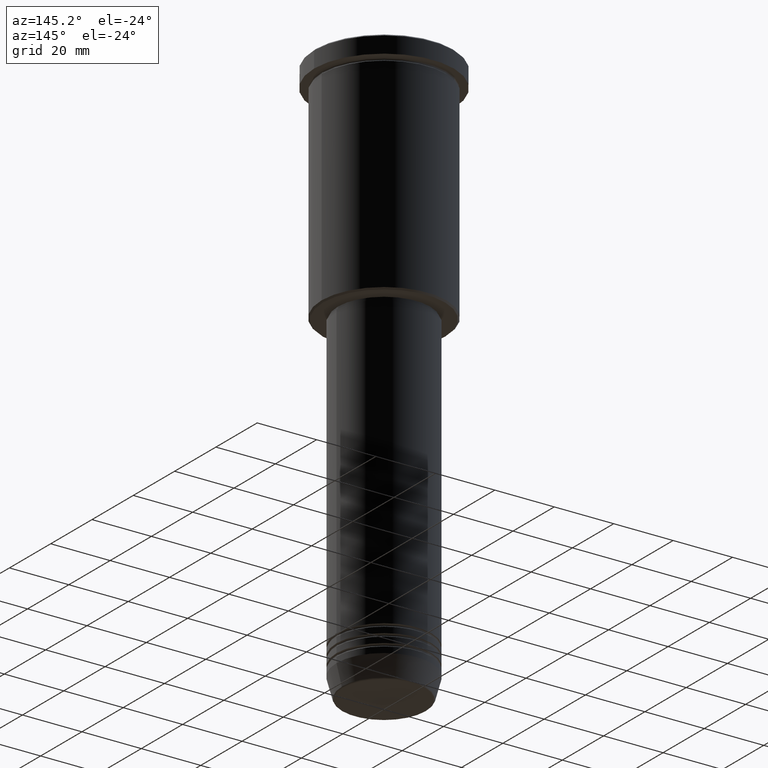
[diagram: clean part render]
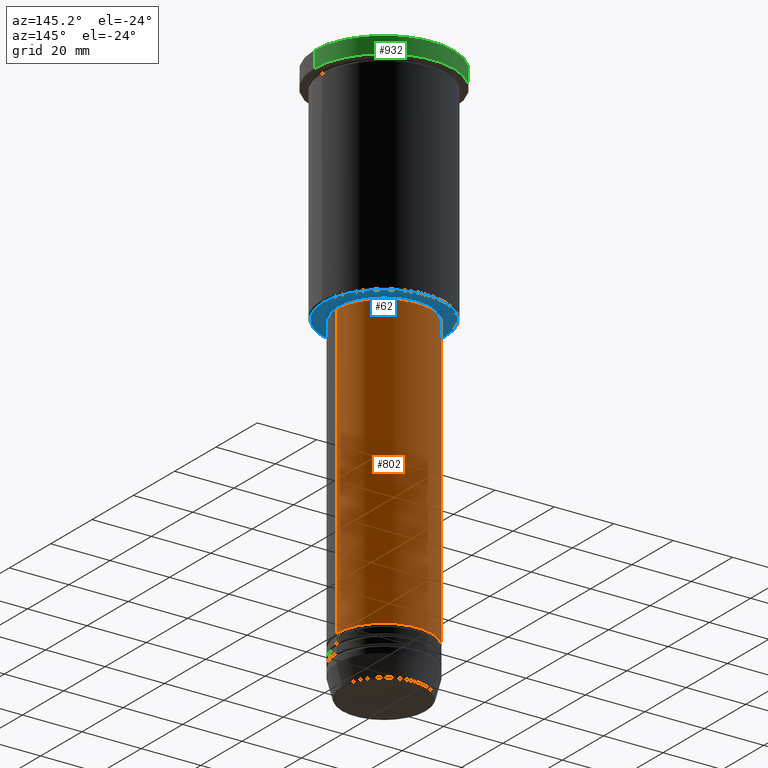
[diagram: same view with three faces highlighted in distinct colors, each labeled with its STEP entity id]
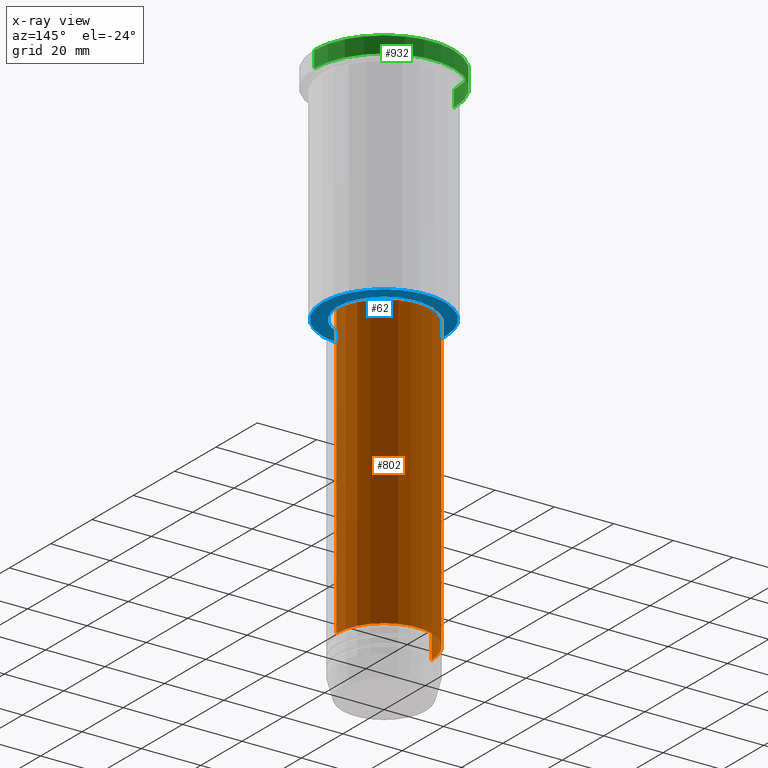
[diagram: x-ray of the same camera — body ghosted, the three highlighted faces saturated]
A machine part, auxiliary view with three faces highlighted in distinct colors.
The next image is the same camera in x-ray (body ghosted, the three faces saturated) — at least one of them is partly hidden behind the body in this view.
Their STEP definitions:

[orange] entity #802 — the highlighted cylindrical surface (partial cylindrical patch) has radius 16 mm, axis along (-0, -0, 1).
#4 = FACE_OUTER_BOUND ( 'NONE', #875, .T. ) ;
#88 = VECTOR ( 'NONE', #324, 1000.000000000000000 ) ;
#111 = CARTESIAN_POINT ( 'NONE',  ( 0.000000000000000000, 0.000000000000000000, -77.00000000000001421 ) ) ;
#145 = CARTESIAN_POINT ( 'NONE',  ( 0.000000000000000000, 0.000000000000000000, -175.0000000000000000 ) ) ;
#158 = AXIS2_PLACEMENT_3D ( 'NONE', #145, #969, #1048 ) ;
#256 = CIRCLE ( 'NONE', #158, 16.00000000000000000 ) ;
#300 = LINE ( 'NONE', #1031, #313 ) ;
#303 = VERTEX_POINT ( 'NONE', #661 ) ;
#313 = VECTOR ( 'NONE', #845, 1000.000000000000000 ) ;
#324 = DIRECTION ( 'NONE',  ( -0.000000000000000000, -0.000000000000000000, 1.000000000000000000 ) ) ;
#346 = VERTEX_POINT ( 'NONE', #852 ) ;
#384 = DIRECTION ( 'NONE',  ( 1.000000000000000000, 0.000000000000000000, 0.000000000000000000 ) ) ;
#464 = VERTEX_POINT ( 'NONE', #806 ) ;
#475 = CARTESIAN_POINT ( 'NONE',  ( 0.000000000000000000, 0.000000000000000000, 0.000000000000000000 ) ) ;
#543 = ORIENTED_EDGE ( 'NONE', *, *, #746, .T. ) ;
#555 = DIRECTION ( 'NONE',  ( -0.000000000000000000, -0.000000000000000000, 1.000000000000000000 ) ) ;
#591 = AXIS2_PLACEMENT_3D ( 'NONE', #111, #555, #768 ) ;
#603 = ORIENTED_EDGE ( 'NONE', *, *, #861, .T. ) ;
#661 = CARTESIAN_POINT ( 'NONE',  ( 16.00000000000000000, 0.000000000000000000, -175.0000000000000000 ) ) ;
#743 = ORIENTED_EDGE ( 'NONE', *, *, #937, .F. ) ;
#746 = EDGE_CURVE ( 'NONE', #346, #464, #300, .T. ) ;
#768 = DIRECTION ( 'NONE',  ( 1.000000000000000000, 0.000000000000000000, 0.000000000000000000 ) ) ;
#788 = LINE ( 'NONE', #1141, #88 ) ;
#802 = ADVANCED_FACE ( 'NONE', ( #4 ), #1026, .T. ) ;
#805 = CARTESIAN_POINT ( 'NONE',  ( 16.00000000000000000, 0.000000000000000000, -77.00000000000001421 ) ) ;
#806 = CARTESIAN_POINT ( 'NONE',  ( -16.00000000000000000, 1.959434878635765131E-15, -77.00000000000001421 ) ) ;
#810 = EDGE_CURVE ( 'NONE', #914, #464, #1073, .T. ) ;
#845 = DIRECTION ( 'NONE',  ( -0.000000000000000000, -0.000000000000000000, 1.000000000000000000 ) ) ;
#852 = CARTESIAN_POINT ( 'NONE',  ( -16.00000000000000000, 1.959434878635765131E-15, -175.0000000000000000 ) ) ;
#861 = EDGE_CURVE ( 'NONE', #303, #346, #256, .T. ) ;
#875 = EDGE_LOOP ( 'NONE', ( #603, #543, #1097, #743 ) ) ;
#914 = VERTEX_POINT ( 'NONE', #805 ) ;
#923 = AXIS2_PLACEMENT_3D ( 'NONE', #475, #1043, #384 ) ;
#937 = EDGE_CURVE ( 'NONE', #303, #914, #788, .T. ) ;
#969 = DIRECTION ( 'NONE',  ( -0.000000000000000000, -0.000000000000000000, 1.000000000000000000 ) ) ;
#1026 = CYLINDRICAL_SURFACE ( 'NONE', #923, 16.00000000000000000 ) ;
#1031 = CARTESIAN_POINT ( 'NONE',  ( -16.00000000000000000, 1.959434878635765131E-15, 0.000000000000000000 ) ) ;
#1043 = DIRECTION ( 'NONE',  ( -0.000000000000000000, -0.000000000000000000, 1.000000000000000000 ) ) ;
#1048 = DIRECTION ( 'NONE',  ( 1.000000000000000000, 0.000000000000000000, 0.000000000000000000 ) ) ;
#1073 = CIRCLE ( 'NONE', #591, 16.00000000000000000 ) ;
#1097 = ORIENTED_EDGE ( 'NONE', *, *, #810, .F. ) ;
#1141 = CARTESIAN_POINT ( 'NONE',  ( 16.00000000000000000, 0.000000000000000000, 0.000000000000000000 ) ) ;

[blue] entity #62 — the highlighted planar face has unit normal (0, 0, -1).
#62 = ADVANCED_FACE ( 'NONE', ( #1153, #1062 ), #502, .T. ) ;
#166 = DIRECTION ( 'NONE',  ( -0.000000000000000000, -0.000000000000000000, 1.000000000000000000 ) ) ;
#182 = AXIS2_PLACEMENT_3D ( 'NONE', #707, #819, #614 ) ;
#222 = DIRECTION ( 'NONE',  ( 0.000000000000000000, 0.000000000000000000, -1.000000000000000000 ) ) ;
#223 = DIRECTION ( 'NONE',  ( 1.000000000000000000, 0.000000000000000000, 0.000000000000000000 ) ) ;
#280 = CIRCLE ( 'NONE', #965, 15.50000000000000000 ) ;
#342 = CARTESIAN_POINT ( 'NONE',  ( -20.49999999999998934, 2.541142108230757480E-15, -76.00000000000001421 ) ) ;
#402 = CARTESIAN_POINT ( 'NONE',  ( 20.49999999999998934, 0.000000000000000000, -76.00000000000001421 ) ) ;
#409 = DIRECTION ( 'NONE',  ( -1.000000000000000000, 0.000000000000000000, -0.000000000000000000 ) ) ;
#430 = EDGE_CURVE ( 'NONE', #964, #910, #549, .T. ) ;
#454 = CIRCLE ( 'NONE', #182, 20.49999999999998934 ) ;
#495 = ORIENTED_EDGE ( 'NONE', *, *, #430, .T. ) ;
#502 = PLANE ( 'NONE',  #1037 ) ;
#549 = CIRCLE ( 'NONE', #904, 15.50000000000000000 ) ;
#550 = EDGE_LOOP ( 'NONE', ( #949, #1113 ) ) ;
#592 = CARTESIAN_POINT ( 'NONE',  ( 0.000000000000000000, 0.000000000000000000, -76.00000000000001421 ) ) ;
#600 = CARTESIAN_POINT ( 'NONE',  ( 15.50000000000000000, 0.000000000000000000, -76.00000000000001421 ) ) ;
#614 = DIRECTION ( 'NONE',  ( -1.000000000000000000, 0.000000000000000000, 0.000000000000000000 ) ) ;
#633 = VERTEX_POINT ( 'NONE', #342 ) ;
#646 = ORIENTED_EDGE ( 'NONE', *, *, #1099, .T. ) ;
#691 = CARTESIAN_POINT ( 'NONE',  ( 0.000000000000000000, 0.000000000000000000, -76.00000000000001421 ) ) ;
#706 = CARTESIAN_POINT ( 'NONE',  ( 0.000000000000000000, 21.00000000000000000, -76.00000000000001421 ) ) ;
#707 = CARTESIAN_POINT ( 'NONE',  ( 0.000000000000000000, 0.000000000000000000, -76.00000000000001421 ) ) ;
#719 = DIRECTION ( 'NONE',  ( 1.000000000000000000, 0.000000000000000000, 0.000000000000000000 ) ) ;
#784 = CARTESIAN_POINT ( 'NONE',  ( -15.50000000000000000, 1.898202538678397557E-15, -76.00000000000001421 ) ) ;
#811 = CARTESIAN_POINT ( 'NONE',  ( 0.000000000000000000, 0.000000000000000000, -76.00000000000001421 ) ) ;
#819 = DIRECTION ( 'NONE',  ( 0.000000000000000000, 0.000000000000000000, -1.000000000000000000 ) ) ;
#879 = DIRECTION ( 'NONE',  ( 0.000000000000000000, 0.000000000000000000, -1.000000000000000000 ) ) ;
#904 = AXIS2_PLACEMENT_3D ( 'NONE', #592, #1061, #223 ) ;
#910 = VERTEX_POINT ( 'NONE', #784 ) ;
#913 = DIRECTION ( 'NONE',  ( -1.000000000000000000, 0.000000000000000000, 0.000000000000000000 ) ) ;
#935 = EDGE_LOOP ( 'NONE', ( #495, #646 ) ) ;
#943 = CIRCLE ( 'NONE', #1094, 20.49999999999998934 ) ;
#949 = ORIENTED_EDGE ( 'NONE', *, *, #985, .T. ) ;
#964 = VERTEX_POINT ( 'NONE', #600 ) ;
#965 = AXIS2_PLACEMENT_3D ( 'NONE', #811, #166, #719 ) ;
#977 = VERTEX_POINT ( 'NONE', #402 ) ;
#985 = EDGE_CURVE ( 'NONE', #977, #633, #943, .T. ) ;
#1008 = EDGE_CURVE ( 'NONE', #633, #977, #454, .T. ) ;
#1037 = AXIS2_PLACEMENT_3D ( 'NONE', #706, #879, #409 ) ;
#1061 = DIRECTION ( 'NONE',  ( -0.000000000000000000, -0.000000000000000000, 1.000000000000000000 ) ) ;
#1062 = FACE_BOUND ( 'NONE', #935, .T. ) ;
#1094 = AXIS2_PLACEMENT_3D ( 'NONE', #691, #222, #913 ) ;
#1099 = EDGE_CURVE ( 'NONE', #910, #964, #280, .T. ) ;
#1113 = ORIENTED_EDGE ( 'NONE', *, *, #1008, .T. ) ;
#1153 = FACE_OUTER_BOUND ( 'NONE', #550, .T. ) ;

[green] entity #932 — the highlighted cylindrical surface (partial cylindrical patch) has radius 23.5 mm, axis along (-0, -0, 1).
#51 = ORIENTED_EDGE ( 'NONE', *, *, #230, .F. ) ;
#53 = FACE_OUTER_BOUND ( 'NONE', #317, .T. ) ;
#60 = CARTESIAN_POINT ( 'NONE',  ( -23.50000000000000000, 2.877919977996280320E-15, -5.999999999999994671 ) ) ;
#78 = CARTESIAN_POINT ( 'NONE',  ( 0.000000000000000000, 0.000000000000000000, -0.5000000000000281997 ) ) ;
#87 = CARTESIAN_POINT ( 'NONE',  ( -23.50000000000000000, 2.877919977996280320E-15, 0.000000000000000000 ) ) ;
#96 = VERTEX_POINT ( 'NONE', #521 ) ;
#102 = AXIS2_PLACEMENT_3D ( 'NONE', #78, #1182, #826 ) ;
#108 = CIRCLE ( 'NONE', #1164, 23.50000000000000000 ) ;
#142 = EDGE_CURVE ( 'NONE', #96, #588, #623, .T. ) ;
#164 = ORIENTED_EDGE ( 'NONE', *, *, #721, .T. ) ;
#168 = CARTESIAN_POINT ( 'NONE',  ( 23.50000000000000000, 0.000000000000000000, -0.5000000000000281997 ) ) ;
#226 = DIRECTION ( 'NONE',  ( 1.000000000000000000, 0.000000000000000000, 0.000000000000000000 ) ) ;
#230 = EDGE_CURVE ( 'NONE', #344, #588, #438, .T. ) ;
#296 = CARTESIAN_POINT ( 'NONE',  ( 23.50000000000000000, 0.000000000000000000, -5.999999999999994671 ) ) ;
#297 = AXIS2_PLACEMENT_3D ( 'NONE', #1151, #507, #226 ) ;
#317 = EDGE_LOOP ( 'NONE', ( #636, #164, #823, #51 ) ) ;
#335 = DIRECTION ( 'NONE',  ( -0.000000000000000000, -0.000000000000000000, 1.000000000000000000 ) ) ;
#344 = VERTEX_POINT ( 'NONE', #296 ) ;
#438 = LINE ( 'NONE', #541, #980 ) ;
#507 = DIRECTION ( 'NONE',  ( -0.000000000000000000, -0.000000000000000000, 1.000000000000000000 ) ) ;
#521 = CARTESIAN_POINT ( 'NONE',  ( -23.50000000000000000, 2.877919977996280320E-15, -0.5000000000000281997 ) ) ;
#541 = CARTESIAN_POINT ( 'NONE',  ( 23.50000000000000000, 0.000000000000000000, 0.000000000000000000 ) ) ;
#545 = LINE ( 'NONE', #87, #1115 ) ;
#588 = VERTEX_POINT ( 'NONE', #168 ) ;
#623 = CIRCLE ( 'NONE', #102, 23.50000000000000000 ) ;
#636 = ORIENTED_EDGE ( 'NONE', *, *, #1096, .T. ) ;
#660 = DIRECTION ( 'NONE',  ( -0.000000000000000000, -0.000000000000000000, 1.000000000000000000 ) ) ;
#721 = EDGE_CURVE ( 'NONE', #1071, #96, #545, .T. ) ;
#823 = ORIENTED_EDGE ( 'NONE', *, *, #142, .T. ) ;
#824 = DIRECTION ( 'NONE',  ( 1.000000000000000000, 0.000000000000000000, 0.000000000000000000 ) ) ;
#826 = DIRECTION ( 'NONE',  ( 1.000000000000000000, 0.000000000000000000, 0.000000000000000000 ) ) ;
#898 = CARTESIAN_POINT ( 'NONE',  ( 0.000000000000000000, 0.000000000000000000, -5.999999999999994671 ) ) ;
#932 = ADVANCED_FACE ( 'NONE', ( #53 ), #982, .T. ) ;
#980 = VECTOR ( 'NONE', #1018, 1000.000000000000000 ) ;
#982 = CYLINDRICAL_SURFACE ( 'NONE', #297, 23.50000000000000000 ) ;
#1018 = DIRECTION ( 'NONE',  ( -0.000000000000000000, -0.000000000000000000, 1.000000000000000000 ) ) ;
#1071 = VERTEX_POINT ( 'NONE', #60 ) ;
#1096 = EDGE_CURVE ( 'NONE', #344, #1071, #108, .T. ) ;
#1115 = VECTOR ( 'NONE', #660, 1000.000000000000000 ) ;
#1151 = CARTESIAN_POINT ( 'NONE',  ( 0.000000000000000000, 0.000000000000000000, 0.000000000000000000 ) ) ;
#1164 = AXIS2_PLACEMENT_3D ( 'NONE', #898, #335, #824 ) ;
#1182 = DIRECTION ( 'NONE',  ( 0.000000000000000000, 0.000000000000000000, -1.000000000000000000 ) ) ;